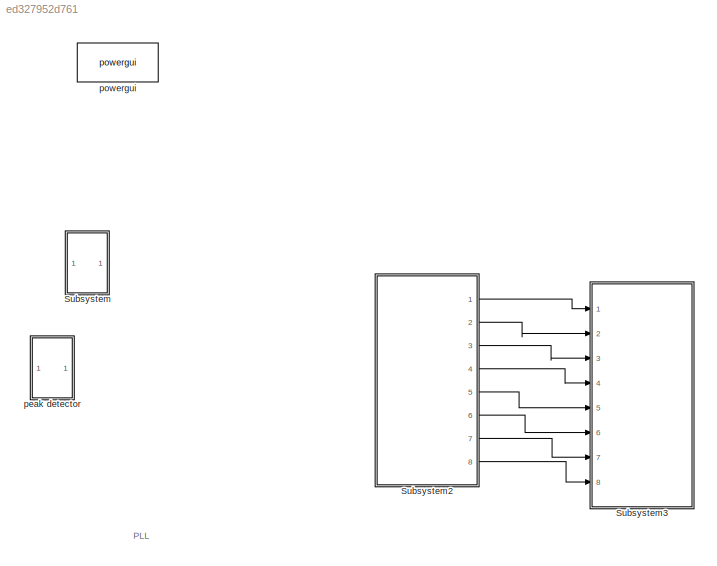
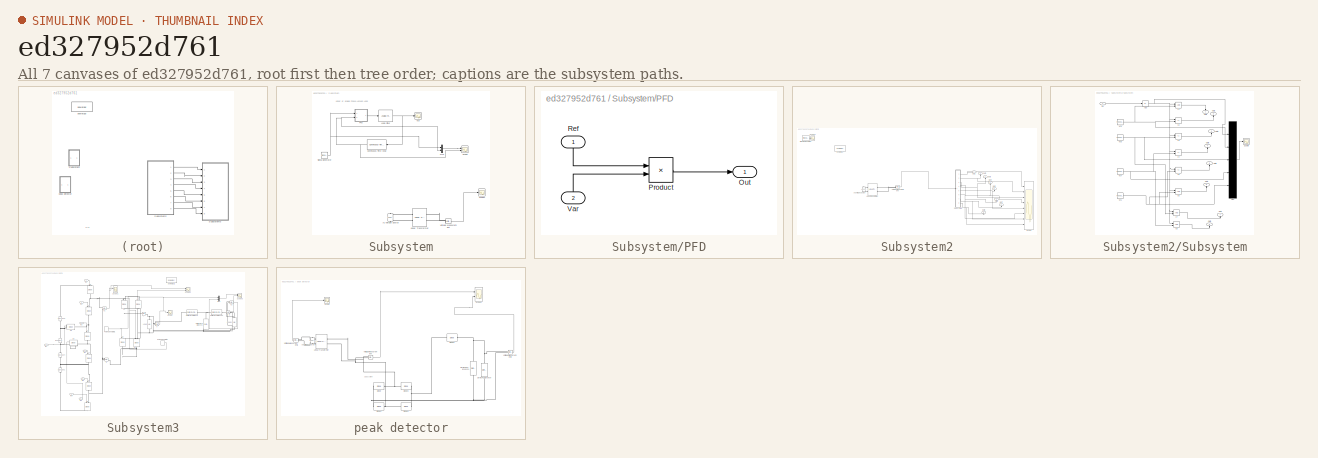
[diagram: thumbnail index - all 7 canvases of the model, root first then tree order]
MODEL slx_ed327952d761
KIND model
CONFIG AbsTol = auto
CONFIG EnableMultiTasking = off
CONFIG FixedStep = auto
CONFIG MaxStep = 1e-4
CONFIG MinStep = auto
CONFIG RelTol = 1e-3
CONFIG SampleTimeConstraint = Unconstrained
CONFIG Solver = VariableStepAuto
CONFIG SolverName = VariableStepAuto
CONFIG StartTime = 0.0
CONFIG StopTime = 0.3
BLOCK [SubSystem] Subsystem
  Ports = []
  RequestExecContextInheritance = off
  Variant = off
BLOCK [Reference] Subsystem/AC Voltage Source  REF=powerlib/Electrical
Sources/AC Voltage Source
  Ports = [0, 0, 0, 0, 0, 1, 1]
  SourceBlock = powerlib/Electrical\nSources/AC Voltage Source
  SourceProductBaseCode = PS
  SourceProductName = Simscape Power Systems
  SourceType = AC Voltage Source
BLOCK [Reference] Subsystem/Continuous-Time VCO2  REF=commsynccomp2/Continuous-Time
VCO
  Ports = [1, 1]
  SourceBlock = commsynccomp2/Continuous-Time\nVCO
  SourceProductBaseCode = CM
  SourceProductName = Communications System Toolbox
  SourceType = Continuous-Time VCO
BLOCK [Reference] Subsystem/Linear Transformer  REF=powerlib/Elements/Linear Transformer
  Ports = [0, 0, 0, 0, 0, 2, 2]
  SourceBlock = powerlib/Elements/Linear Transformer
  SourceProductBaseCode = PS
  SourceProductName = Simscape Power Systems
  SourceType = Linear Transformer
BLOCK [Reference] Subsystem/Loop Filter  REF=dsparch4/Analog
Filter Design
  Ports = [1, 1]
  SourceBlock = dsparch4/Analog\nFilter Design
  SourceProductBaseCode = DS
  SourceProductName = DSP System Toolbox
  SourceType = Analog Filter Design
BLOCK [Mux] Subsystem/Mux
  DisplayOption = bar
  Inputs = 2
  Ports = [2, 1]
BLOCK [SubSystem] Subsystem/PFD
  Ports = [2, 1]
  RequestExecContextInheritance = off
  Variant = off
BLOCK [Outport] Subsystem/PFD/Out
  IconDisplay = Port number
BLOCK [Product] Subsystem/PFD/Product
  InputSameDT = off
  OutDataTypeStr = Inherit: Inherit via internal rule
  Ports = [2, 1]
  SaturateOnIntegerOverflow = off
BLOCK [Inport] Subsystem/PFD/Ref
  IconDisplay = Port number
BLOCK [Inport] Subsystem/PFD/Var
  IconDisplay = Port number
  Port = 2
BLOCK [Scope] Subsystem/Scope
  NumInputPorts = 2
  Ports = [2]
  ScopeSpecificationString = Simulink.scopes.TimeScopeBlockCfg('CurrentConfiguration', extmgr.ConfigurationSet(extmgr.Configuration('Core','General UI',true),extmgr.Configuration('Core','Source UI',true),extmgr.Configuration('Sources','WiredSimulink',true,'DataLoggingVariableName','ScopeData6'),extmgr.Configuration('Visuals','Time Domain',true,'SerializedDisplays',{struct('MinYLimReal','-2.5','MaxYLimReal','2.5','YLabelReal',...<+2151ch>
BLOCK [Scope] Subsystem/Scope1
  NumInputPorts = 1
  Ports = [1]
  ScopeSpecificationString = Simulink.scopes.TimeScopeBlockCfg('CurrentConfiguration', extmgr.ConfigurationSet(extmgr.Configuration('Core','General UI',true),extmgr.Configuration('Core','Source UI',true),extmgr.Configuration('Sources','WiredSimulink',true,'DataLoggingVariableName','ScopeData3'),extmgr.Configuration('Visuals','Time Domain',true,'SerializedDisplays',{struct('MinYLimReal','-8.74963','MaxYLimReal','8.74916','YLab...<+2136ch>
BLOCK [SignalGenerator] Subsystem/Signal Generator
  Amplitude = 2
  Frequency = 2*pi*50
  Ports = [0, 1]
  Units = rad/sec
BLOCK [Scope] Subsystem/Vco
  NumInputPorts = 1
  Ports = [1]
  ScopeSpecificationString = Simulink.scopes.TimeScopeBlockCfg('CurrentConfiguration', extmgr.ConfigurationSet(extmgr.Configuration('Core','General UI',true),extmgr.Configuration('Core','Source UI',true),extmgr.Configuration('Sources','WiredSimulink',true,'DataLoggingSaveFormat','StructureWithTime','DataLoggingDecimation','1','DataLoggingDecimateData',true,'DataLoggingVariableName','ScopeData2'),extmgr.Configuration('Visuals'...<+1677ch>
BLOCK [Reference] Subsystem/Voltage Measurement  REF=powerlib/Measurements/Voltage Measurement
  Ports = [0, 1, 0, 0, 0, 2]
  SourceBlock = powerlib/Measurements/Voltage Measurement
  SourceProductBaseCode = PS
  SourceProductName = Simscape Power Systems
  SourceType = Voltage Measurement
  UserDataPersistent = on
BLOCK [SubSystem] Subsystem2
  Ports = [0, 8]
  RequestExecContextInheritance = off
  Variant = off
BLOCK [Reference] Subsystem2/AC Voltage Source  REF=powerlib/Electrical
Sources/AC Voltage Source
  Ports = [0, 0, 0, 0, 0, 1, 1]
  SourceBlock = powerlib/Electrical\nSources/AC Voltage Source
  SourceProductBaseCode = PS
  SourceProductName = Simscape Power Systems
  SourceType = AC Voltage Source
BLOCK [Reference] Subsystem2/Linear Transformer  REF=powerlib/Elements/Linear Transformer
  Ports = [0, 0, 0, 0, 0, 2, 2]
  SourceBlock = powerlib/Elements/Linear Transformer
  SourceProductBaseCode = PS
  SourceProductName = Simscape Power Systems
  SourceType = Linear Transformer
BLOCK [Outport] Subsystem2/Out1
  IconDisplay = Port number
BLOCK [Outport] Subsystem2/Out2
  IconDisplay = Port number
  Port = 2
BLOCK [Outport] Subsystem2/Out3
  IconDisplay = Port number
  Port = 3
BLOCK [Outport] Subsystem2/Out4
  IconDisplay = Port number
  Port = 4
BLOCK [Outport] Subsystem2/Out5
  IconDisplay = Port number
  Port = 5
BLOCK [Outport] Subsystem2/Out6
  IconDisplay = Port number
  Port = 6
BLOCK [Outport] Subsystem2/Out7
  IconDisplay = Port number
  Port = 7
BLOCK [Outport] Subsystem2/Out8
  IconDisplay = Port number
  Port = 8
BLOCK [Scope] Subsystem2/Scope
  NumInputPorts = 8
  Ports = [8]
  ScopeSpecificationString = Simulink.scopes.TimeScopeBlockCfg('CurrentConfiguration', extmgr.ConfigurationSet(extmgr.Configuration('Core','General UI',true,'FigureColor',[0 0 0]),extmgr.Configuration('Core','Source UI',true),extmgr.Configuration('Sources','WiredSimulink',true,'DataLoggingVariableName','ScopeData2'),extmgr.Configuration('Visuals','Time Domain',true,'PlotType','Line','SerializedDisplays',{struct('MinYLimReal',...<+6373ch>
BLOCK [Scope] Subsystem2/Scope1
  NumInputPorts = 1
  Ports = [1]
  ScopeSpecificationString = Simulink.scopes.TimeScopeBlockCfg('CurrentConfiguration', extmgr.ConfigurationSet(extmgr.Configuration('Core','General UI',true),extmgr.Configuration('Core','Source UI',true),extmgr.Configuration('Sources','WiredSimulink',true,'DataLoggingVariableName','ScopeData2'),extmgr.Configuration('Visuals','Time Domain',true,'SerializedDisplays',{struct('MinYLimReal','-0.62534','MaxYLimReal','5.62802','YLab...<+1477ch>
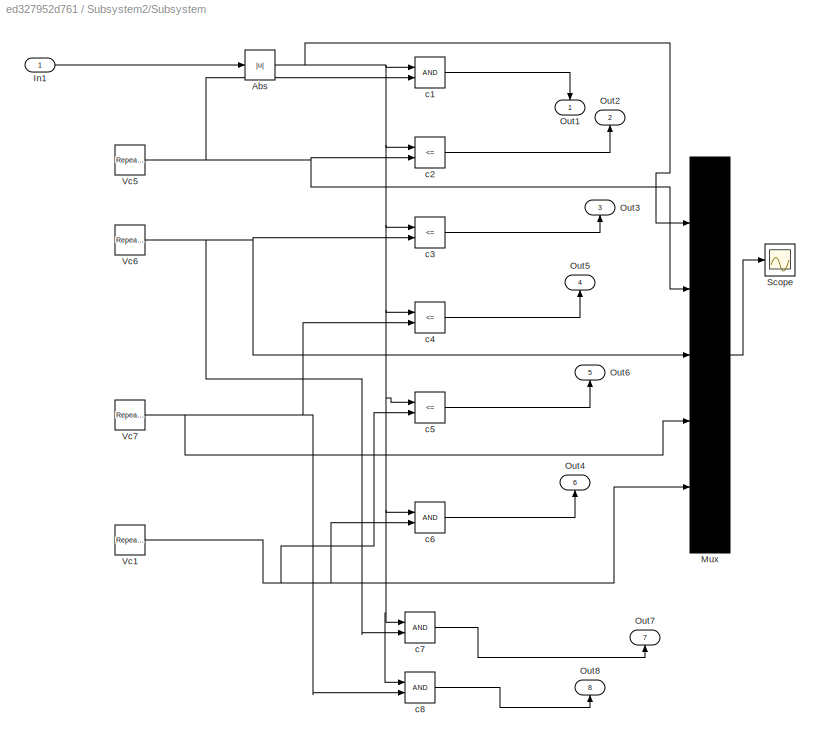
BLOCK [SubSystem] Subsystem2/Subsystem
  Ports = [1, 8]
  RequestExecContextInheritance = off
  Variant = off
BLOCK [Abs] Subsystem2/Subsystem/Abs
  SaturateOnIntegerOverflow = off
BLOCK [Inport] Subsystem2/Subsystem/In1
  IconDisplay = Port number
BLOCK [Mux] Subsystem2/Subsystem/Mux
  DisplayOption = bar
  Inputs = 5
  Ports = [5, 1]
BLOCK [Outport] Subsystem2/Subsystem/Out1
  IconDisplay = Port number
BLOCK [Outport] Subsystem2/Subsystem/Out2
  IconDisplay = Port number
  Port = 2
BLOCK [Outport] Subsystem2/Subsystem/Out3
  IconDisplay = Port number
  Port = 3
BLOCK [Outport] Subsystem2/Subsystem/Out4
  IconDisplay = Port number
  Port = 6
BLOCK [Outport] Subsystem2/Subsystem/Out5
  IconDisplay = Port number
  Port = 4
BLOCK [Outport] Subsystem2/Subsystem/Out6
  IconDisplay = Port number
  Port = 5
BLOCK [Outport] Subsystem2/Subsystem/Out7
  IconDisplay = Port number
  Port = 7
BLOCK [Outport] Subsystem2/Subsystem/Out8
  IconDisplay = Port number
  Port = 8
BLOCK [Scope] Subsystem2/Subsystem/Scope
  NumInputPorts = 1
  Ports = [1]
  ScopeSpecificationString = Simulink.scopes.TimeScopeBlockCfg('CurrentConfiguration', extmgr.ConfigurationSet(extmgr.Configuration('Core','General UI',true),extmgr.Configuration('Core','Source UI',true),extmgr.Configuration('Sources','WiredSimulink',true,'DataLoggingVariableName','ScopeData2'),extmgr.Configuration('Visuals','Time Domain',true,'SerializedDisplays',{struct('MinYLimReal','-0.625','MaxYLimReal','5.625','YLabelRe...<+1668ch>
BLOCK [Reference] Subsystem2/Subsystem/Vc1  REF=simulink/Sources/Repeating
Sequence
  Ports = [0, 1]
  SourceBlock = simulink/Sources/Repeating\nSequence
  SourceProductBaseCode = SL
  SourceProductName = Simulink
  SourceType = Repeating table
BLOCK [Reference] Subsystem2/Subsystem/Vc5  REF=simulink/Sources/Repeating
Sequence
  Ports = [0, 1]
  SourceBlock = simulink/Sources/Repeating\nSequence
  SourceProductBaseCode = SL
  SourceProductName = Simulink
  SourceType = Repeating table
BLOCK [Reference] Subsystem2/Subsystem/Vc6  REF=simulink/Sources/Repeating
Sequence
  Ports = [0, 1]
  SourceBlock = simulink/Sources/Repeating\nSequence
  SourceProductBaseCode = SL
  SourceProductName = Simulink
  SourceType = Repeating table
BLOCK [Reference] Subsystem2/Subsystem/Vc7  REF=simulink/Sources/Repeating
Sequence
  Ports = [0, 1]
  SourceBlock = simulink/Sources/Repeating\nSequence
  SourceProductBaseCode = SL
  SourceProductName = Simulink
  SourceType = Repeating table
BLOCK [RelationalOperator] Subsystem2/Subsystem/c1
  InputSameDT = off
  OutDataTypeStr = boolean
  Ports = [2, 1]
BLOCK [RelationalOperator] Subsystem2/Subsystem/c2
  InputSameDT = off
  Operator = <=
  OutDataTypeStr = boolean
  Ports = [2, 1]
BLOCK [RelationalOperator] Subsystem2/Subsystem/c3
  InputSameDT = off
  Operator = <=
  OutDataTypeStr = boolean
  Ports = [2, 1]
BLOCK [RelationalOperator] Subsystem2/Subsystem/c4
  InputSameDT = off
  Operator = <=
  OutDataTypeStr = boolean
  Ports = [2, 1]
BLOCK [RelationalOperator] Subsystem2/Subsystem/c5
  InputSameDT = off
  Operator = <=
  OutDataTypeStr = boolean
  Ports = [2, 1]
BLOCK [RelationalOperator] Subsystem2/Subsystem/c6
  InputSameDT = off
  OutDataTypeStr = boolean
  Ports = [2, 1]
BLOCK [RelationalOperator] Subsystem2/Subsystem/c7
  InputSameDT = off
  OutDataTypeStr = boolean
  Ports = [2, 1]
BLOCK [RelationalOperator] Subsystem2/Subsystem/c8
  InputSameDT = off
  OutDataTypeStr = boolean
  Ports = [2, 1]
BLOCK [Reference] Subsystem2/Triangle Generator  REF=powerlib_meascontrol/Pulse & Signal
Generators/Triangle
Generator
  Ports = [0, 1]
  SourceBlock = powerlib_meascontrol/Pulse & Signal\nGenerators/Triangle\nGenerator
  SourceProductBaseCode = PS
  SourceProductName = Simscape Power Systems
  SourceType = Triangle Generator
BLOCK [Reference] Subsystem2/Voltage Measurement  REF=powerlib/Measurements/Voltage Measurement
  Ports = [0, 1, 0, 0, 0, 2]
  SourceBlock = powerlib/Measurements/Voltage Measurement
  SourceProductBaseCode = PS
  SourceProductName = Simscape Power Systems
  SourceType = Voltage Measurement
  UserDataPersistent = on
BLOCK [Reference] Subsystem2/powergui  REF=powerlib/powergui
  Ports = []
  Priority = 1
  SourceBlock = powerlib/powergui
  SourceProductBaseCode = PS
  SourceProductName = Simscape Power Systems
  SourceType = PSB option menu block
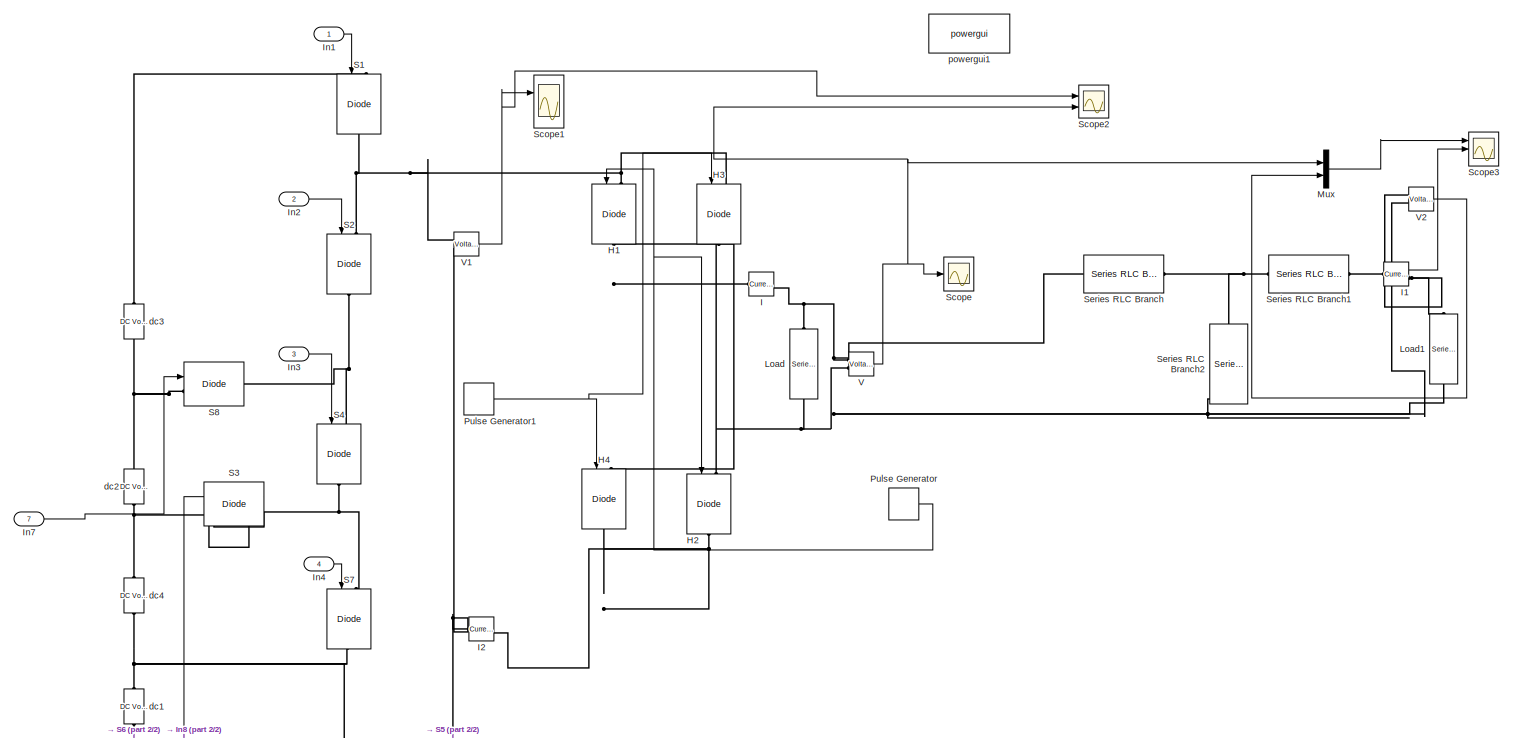
[diagram: Subsystem3 - part 1/2, full width, middle band]
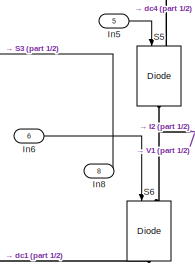
[diagram: Subsystem3 - part 2/2, bottom left region]
BLOCK [SubSystem] Subsystem3
  Ports = [8]
  RequestExecContextInheritance = off
  Variant = off
BLOCK [Reference] Subsystem3/H1  REF=powerlib/Power
Electronics/IGBT//Diode
  Ports = [1, 0, 0, 0, 0, 1, 1]
  SourceBlock = powerlib/Power\nElectronics/IGBT//Diode
  SourceProductBaseCode = PS
  SourceProductName = Simscape Power Systems
  SourceType = IGBT/Diode
BLOCK [Reference] Subsystem3/H2  REF=powerlib/Power
Electronics/IGBT//Diode
  Ports = [1, 0, 0, 0, 0, 1, 1]
  SourceBlock = powerlib/Power\nElectronics/IGBT//Diode
  SourceProductBaseCode = PS
  SourceProductName = Simscape Power Systems
  SourceType = IGBT/Diode
BLOCK [Reference] Subsystem3/H3  REF=powerlib/Power
Electronics/IGBT//Diode
  Ports = [1, 0, 0, 0, 0, 1, 1]
  SourceBlock = powerlib/Power\nElectronics/IGBT//Diode
  SourceProductBaseCode = PS
  SourceProductName = Simscape Power Systems
  SourceType = IGBT/Diode
BLOCK [Reference] Subsystem3/H4  REF=powerlib/Power
Electronics/IGBT//Diode
  Ports = [1, 0, 0, 0, 0, 1, 1]
  SourceBlock = powerlib/Power\nElectronics/IGBT//Diode
  SourceProductBaseCode = PS
  SourceProductName = Simscape Power Systems
  SourceType = IGBT/Diode
BLOCK [Reference] Subsystem3/I  REF=powerlib/Measurements/Current Measurement
  Ports = [0, 1, 0, 0, 0, 1, 1]
  SourceBlock = powerlib/Measurements/Current Measurement
  SourceProductBaseCode = PS
  SourceProductName = Simscape Power Systems
  SourceType = Current Measurement
BLOCK [Reference] Subsystem3/I1  REF=powerlib/Measurements/Current Measurement
  Ports = [0, 1, 0, 0, 0, 1, 1]
  SourceBlock = powerlib/Measurements/Current Measurement
  SourceProductBaseCode = PS
  SourceProductName = Simscape Power Systems
  SourceType = Current Measurement
BLOCK [Reference] Subsystem3/I2  REF=powerlib/Measurements/Current Measurement
  Ports = [0, 1, 0, 0, 0, 1, 1]
  SourceBlock = powerlib/Measurements/Current Measurement
  SourceProductBaseCode = PS
  SourceProductName = Simscape Power Systems
  SourceType = Current Measurement
BLOCK [Inport] Subsystem3/In1
  IconDisplay = Port number
BLOCK [Inport] Subsystem3/In2
  IconDisplay = Port number
  Port = 2
BLOCK [Inport] Subsystem3/In3
  IconDisplay = Port number
  Port = 3
BLOCK [Inport] Subsystem3/In4
  IconDisplay = Port number
  Port = 4
BLOCK [Inport] Subsystem3/In5
  IconDisplay = Port number
  Port = 5
BLOCK [Inport] Subsystem3/In6
  IconDisplay = Port number
  Port = 6
BLOCK [Inport] Subsystem3/In7
  IconDisplay = Port number
  Port = 7
BLOCK [Inport] Subsystem3/In8
  IconDisplay = Port number
  Port = 8
BLOCK [Reference] Subsystem3/Load  REF=powerlib/Elements/Series RLC Branch
  Ports = [0, 0, 0, 0, 0, 1, 1]
  SourceBlock = powerlib/Elements/Series RLC Branch
  SourceProductBaseCode = PS
  SourceProductName = Simscape Power Systems
  SourceType = Series RLC Branch
BLOCK [Reference] Subsystem3/Load1  REF=powerlib/Elements/Series RLC Branch
  Ports = [0, 0, 0, 0, 0, 1, 1]
  SourceBlock = powerlib/Elements/Series RLC Branch
  SourceProductBaseCode = PS
  SourceProductName = Simscape Power Systems
  SourceType = Series RLC Branch
BLOCK [Mux] Subsystem3/Mux
  DisplayOption = bar
  Inputs = 2
  Ports = [2, 1]
BLOCK [DiscretePulseGenerator] Subsystem3/Pulse Generator
  Period = 0.02
  Ports = [0, 1]
  PulseType = Time based
  PulseWidth = 50
BLOCK [DiscretePulseGenerator] Subsystem3/Pulse Generator1
  Period = 0.02
  PhaseDelay = .01
  Ports = [0, 1]
  PulseType = Time based
  PulseWidth = 50
BLOCK [Reference] Subsystem3/S1  REF=powerlib/Power
Electronics/IGBT//Diode
  Ports = [1, 0, 0, 0, 0, 1, 1]
  SourceBlock = powerlib/Power\nElectronics/IGBT//Diode
  SourceProductBaseCode = PS
  SourceProductName = Simscape Power Systems
  SourceType = IGBT/Diode
BLOCK [Reference] Subsystem3/S2  REF=powerlib/Power
Electronics/IGBT//Diode
  Ports = [1, 0, 0, 0, 0, 1, 1]
  SourceBlock = powerlib/Power\nElectronics/IGBT//Diode
  SourceProductBaseCode = PS
  SourceProductName = Simscape Power Systems
  SourceType = IGBT/Diode
BLOCK [Reference] Subsystem3/S3  REF=powerlib/Power
Electronics/IGBT//Diode
  Ports = [1, 0, 0, 0, 0, 1, 1]
  SourceBlock = powerlib/Power\nElectronics/IGBT//Diode
  SourceProductBaseCode = PS
  SourceProductName = Simscape Power Systems
  SourceType = IGBT/Diode
BLOCK [Reference] Subsystem3/S4  REF=powerlib/Power
Electronics/IGBT//Diode
  Ports = [1, 0, 0, 0, 0, 1, 1]
  SourceBlock = powerlib/Power\nElectronics/IGBT//Diode
  SourceProductBaseCode = PS
  SourceProductName = Simscape Power Systems
  SourceType = IGBT/Diode
BLOCK [Reference] Subsystem3/S5  REF=powerlib/Power
Electronics/IGBT//Diode
  Ports = [1, 0, 0, 0, 0, 1, 1]
  SourceBlock = powerlib/Power\nElectronics/IGBT//Diode
  SourceProductBaseCode = PS
  SourceProductName = Simscape Power Systems
  SourceType = IGBT/Diode
BLOCK [Reference] Subsystem3/S6  REF=powerlib/Power
Electronics/IGBT//Diode
  Ports = [1, 0, 0, 0, 0, 1, 1]
  SourceBlock = powerlib/Power\nElectronics/IGBT//Diode
  SourceProductBaseCode = PS
  SourceProductName = Simscape Power Systems
  SourceType = IGBT/Diode
BLOCK [Reference] Subsystem3/S7  REF=powerlib/Power
Electronics/IGBT//Diode
  Ports = [1, 0, 0, 0, 0, 1, 1]
  SourceBlock = powerlib/Power\nElectronics/IGBT//Diode
  SourceProductBaseCode = PS
  SourceProductName = Simscape Power Systems
  SourceType = IGBT/Diode
BLOCK [Reference] Subsystem3/S8  REF=powerlib/Power
Electronics/IGBT//Diode
  Ports = [1, 0, 0, 0, 0, 1, 1]
  SourceBlock = powerlib/Power\nElectronics/IGBT//Diode
  SourceProductBaseCode = PS
  SourceProductName = Simscape Power Systems
  SourceType = IGBT/Diode
BLOCK [Scope] Subsystem3/Scope
  NumInputPorts = 1
  Ports = [1]
  ScopeSpecificationString = Simulink.scopes.TimeScopeBlockCfg('CurrentConfiguration', extmgr.ConfigurationSet(extmgr.Configuration('Core','General UI',true,'FigureColor',[1 1 1]),extmgr.Configuration('Core','Source UI',true),extmgr.Configuration('Sources','WiredSimulink',true,'DataLogging',true,'DataLoggingSaveFormat','StructureWithTime','DataLoggingMaxPoints','50000','DataLoggingDecimation','1','DataLoggingDecimateData',tru...<+1896ch>
BLOCK [Scope] Subsystem3/Scope1
  NumInputPorts = 2
  Ports = [2]
  ScopeSpecificationString = Simulink.scopes.TimeScopeBlockCfg('CurrentConfiguration', extmgr.ConfigurationSet(extmgr.Configuration('Core','General UI',true),extmgr.Configuration('Core','Source UI',true),extmgr.Configuration('Sources','WiredSimulink',true,'DataLoggingVariableName','ScopeData1'),extmgr.Configuration('Visuals','Time Domain',true,'PlotType','Line','SerializedDisplays',{struct('MinYLimReal','-7.4985','MaxYLimReal...<+1657ch>
BLOCK [Scope] Subsystem3/Scope2
  NumInputPorts = 2
  Ports = [2]
  ScopeSpecificationString = Simulink.scopes.TimeScopeBlockCfg('CurrentConfiguration', extmgr.ConfigurationSet(extmgr.Configuration('Core','General UI',true,'FigureColor',[1 1 1]),extmgr.Configuration('Core','Source UI',true),extmgr.Configuration('Sources','WiredSimulink',true,'DataLoggingVariableName','ScopeData1'),extmgr.Configuration('Visuals','Time Domain',true,'SerializedDisplays',{struct('MinYLimReal','-9.99659','MaxYLi...<+2318ch>
BLOCK [Scope] Subsystem3/Scope3
  NumInputPorts = 3
  Ports = [3]
  ScopeSpecificationString = Simulink.scopes.TimeScopeBlockCfg('CurrentConfiguration', extmgr.ConfigurationSet(extmgr.Configuration('Core','General UI',true,'FigureColor',[1 0.843137254901961 0]),extmgr.Configuration('Core','Source UI',true),extmgr.Configuration('Sources','WiredSimulink',true,'DataLoggingVariableName','ScopeData4'),extmgr.Configuration('Visuals','Time Domain',true,'PlotType','Line','SerializedDisplays',{struc...<+2410ch>
BLOCK [Reference] Subsystem3/Series RLC Branch  REF=powerlib/Elements/Series RLC Branch
  Ports = [0, 0, 0, 0, 0, 1, 1]
  SourceBlock = powerlib/Elements/Series RLC Branch
  SourceProductBaseCode = PS
  SourceProductName = Simscape Power Systems
  SourceType = Series RLC Branch
BLOCK [Reference] Subsystem3/Series RLC Branch1  REF=powerlib/Elements/Series RLC Branch
  Ports = [0, 0, 0, 0, 0, 1, 1]
  SourceBlock = powerlib/Elements/Series RLC Branch
  SourceProductBaseCode = PS
  SourceProductName = Simscape Power Systems
  SourceType = Series RLC Branch
BLOCK [Reference] Subsystem3/Series RLC Branch2  REF=powerlib/Elements/Series RLC Branch
  Ports = [0, 0, 0, 0, 0, 1, 1]
  SourceBlock = powerlib/Elements/Series RLC Branch
  SourceProductBaseCode = PS
  SourceProductName = Simscape Power Systems
  SourceType = Series RLC Branch
BLOCK [Reference] Subsystem3/V  REF=powerlib/Measurements/Voltage Measurement
  Ports = [0, 1, 0, 0, 0, 2]
  SourceBlock = powerlib/Measurements/Voltage Measurement
  SourceProductBaseCode = PS
  SourceProductName = Simscape Power Systems
  SourceType = Voltage Measurement
BLOCK [Reference] Subsystem3/V1  REF=powerlib/Measurements/Voltage Measurement
  Ports = [0, 1, 0, 0, 0, 2]
  SourceBlock = powerlib/Measurements/Voltage Measurement
  SourceProductBaseCode = PS
  SourceProductName = Simscape Power Systems
  SourceType = Voltage Measurement
BLOCK [Reference] Subsystem3/V2  REF=powerlib/Measurements/Voltage Measurement
  Ports = [0, 1, 0, 0, 0, 2]
  SourceBlock = powerlib/Measurements/Voltage Measurement
  SourceProductBaseCode = PS
  SourceProductName = Simscape Power Systems
  SourceType = Voltage Measurement
BLOCK [Reference] Subsystem3/dc1  REF=powerlib/Electrical
Sources/DC Voltage Source
  Ports = [0, 0, 0, 0, 0, 1, 1]
  SourceBlock = powerlib/Electrical\nSources/DC Voltage Source
  SourceProductBaseCode = PS
  SourceProductName = Simscape Power Systems
  SourceType = DC Voltage Source
BLOCK [Reference] Subsystem3/dc2  REF=powerlib/Electrical
Sources/DC Voltage Source
  Ports = [0, 0, 0, 0, 0, 1, 1]
  SourceBlock = powerlib/Electrical\nSources/DC Voltage Source
  SourceProductBaseCode = PS
  SourceProductName = Simscape Power Systems
  SourceType = DC Voltage Source
BLOCK [Reference] Subsystem3/dc3  REF=powerlib/Electrical
Sources/DC Voltage Source
  Ports = [0, 0, 0, 0, 0, 1, 1]
  SourceBlock = powerlib/Electrical\nSources/DC Voltage Source
  SourceProductBaseCode = PS
  SourceProductName = Simscape Power Systems
  SourceType = DC Voltage Source
BLOCK [Reference] Subsystem3/dc4  REF=powerlib/Electrical
Sources/DC Voltage Source
  Ports = [0, 0, 0, 0, 0, 1, 1]
  SourceBlock = powerlib/Electrical\nSources/DC Voltage Source
  SourceProductBaseCode = PS
  SourceProductName = Simscape Power Systems
  SourceType = DC Voltage Source
BLOCK [Reference] Subsystem3/powergui1  REF=powerlib/powergui
  Ports = []
  Priority = 1
  SourceBlock = powerlib/powergui
  SourceProductBaseCode = PS
  SourceProductName = Simscape Power Systems
  SourceType = PSB option menu block
BLOCK [SubSystem] peak detector
  Ports = []
  RequestExecContextInheritance = off
  Variant = off
BLOCK [Reference] peak detector/AC Voltage Source  REF=powerlib/Electrical
Sources/AC Voltage Source
  Ports = [0, 0, 0, 0, 0, 1, 1]
  SourceBlock = powerlib/Electrical\nSources/AC Voltage Source
  SourceProductBaseCode = PS
  SourceProductName = Simscape Power Systems
  SourceType = AC Voltage Source
BLOCK [Reference] peak detector/Diode  REF=powerlib/Power
Electronics/Diode
  Ports = [0, 0, 0, 0, 0, 1, 1]
  SourceBlock = powerlib/Power\nElectronics/Diode
  SourceProductBaseCode = PS
  SourceProductName = Simscape Power Systems
  SourceType = Diode
BLOCK [Reference] peak detector/Diode1  REF=powerlib/Power
Electronics/Diode
  Ports = [0, 0, 0, 0, 0, 1, 1]
  SourceBlock = powerlib/Power\nElectronics/Diode
  SourceProductBaseCode = PS
  SourceProductName = Simscape Power Systems
  SourceType = Diode
BLOCK [Reference] peak detector/Diode2  REF=powerlib/Power
Electronics/Diode
  Ports = [0, 0, 0, 0, 0, 1, 1]
  SourceBlock = powerlib/Power\nElectronics/Diode
  SourceProductBaseCode = PS
  SourceProductName = Simscape Power Systems
  SourceType = Diode
BLOCK [Reference] peak detector/Diode3  REF=powerlib/Power
Electronics/Diode
  Ports = [0, 0, 0, 0, 0, 1, 1]
  SourceBlock = powerlib/Power\nElectronics/Diode
  SourceProductBaseCode = PS
  SourceProductName = Simscape Power Systems
  SourceType = Diode
BLOCK [Reference] peak detector/Diode4  REF=powerlib/Power
Electronics/Diode
  Ports = [0, 0, 0, 0, 0, 1, 1]
  SourceBlock = powerlib/Power\nElectronics/Diode
  SourceProductBaseCode = PS
  SourceProductName = Simscape Power Systems
  SourceType = Diode
BLOCK [Reference] peak detector/Linear Transformer  REF=powerlib/Elements/Linear Transformer
  Ports = [0, 0, 0, 0, 0, 2, 2]
  SourceBlock = powerlib/Elements/Linear Transformer
  SourceProductBaseCode = PS
  SourceProductName = Simscape Power Systems
  SourceType = Linear Transformer
BLOCK [Scope] peak detector/Scope
  NumInputPorts = 1
  Ports = [1]
  ScopeSpecificationString = Simulink.scopes.TimeScopeBlockCfg('CurrentConfiguration', extmgr.ConfigurationSet(extmgr.Configuration('Core','General UI',true),extmgr.Configuration('Core','Source UI',true),extmgr.Configuration('Sources','WiredSimulink',true),extmgr.Configuration('Visuals','Time Domain',true,'SerializedDisplays',{struct('MinYLimReal','-1.00000','MaxYLimReal','1.00000','YLabelReal','','MinYLimMag','0.00000','MaxY...<+2078ch>
BLOCK [Scope] peak detector/Scope1
  NumInputPorts = 2
  Ports = [2]
  ScopeSpecificationString = Simulink.scopes.TimeScopeBlockCfg('CurrentConfiguration', extmgr.ConfigurationSet(extmgr.Configuration('Core','General UI',true),extmgr.Configuration('Core','Source UI',true),extmgr.Configuration('Sources','WiredSimulink',true,'DataLoggingVariableName','ScopeData1'),extmgr.Configuration('Visuals','Time Domain',true,'SerializedDisplays',{struct('MinYLimReal','-6.25333','MaxYLimReal','6.25335','YLab...<+2183ch>
BLOCK [Reference] peak detector/Series RLC Branch  REF=powerlib/Elements/Series RLC Branch
  Ports = [0, 0, 0, 0, 0, 1, 1]
  SourceBlock = powerlib/Elements/Series RLC Branch
  SourceProductBaseCode = PS
  SourceProductName = Simscape Power Systems
  SourceType = Series RLC Branch
BLOCK [Reference] peak detector/Series RLC Branch1  REF=powerlib/Elements/Series RLC Branch
  Ports = [0, 0, 0, 0, 0, 1, 1]
  SourceBlock = powerlib/Elements/Series RLC Branch
  SourceProductBaseCode = PS
  SourceProductName = Simscape Power Systems
  SourceType = Series RLC Branch
BLOCK [Reference] peak detector/Voltage Measurement  REF=powerlib/Measurements/Voltage Measurement
  Ports = [0, 1, 0, 0, 0, 2]
  SourceBlock = powerlib/Measurements/Voltage Measurement
  SourceProductBaseCode = PS
  SourceProductName = Simscape Power Systems
  SourceType = Voltage Measurement
  UserDataPersistent = on
BLOCK [Reference] peak detector/Voltage Measurement1  REF=powerlib/Measurements/Voltage Measurement
  Ports = [0, 1, 0, 0, 0, 2]
  SourceBlock = powerlib/Measurements/Voltage Measurement
  SourceProductBaseCode = PS
  SourceProductName = Simscape Power Systems
  SourceType = Voltage Measurement
  UserDataPersistent = on
BLOCK [Reference] peak detector/Voltage Measurement2  REF=powerlib/Measurements/Voltage Measurement
  Ports = [0, 1, 0, 0, 0, 2]
  SourceBlock = powerlib/Measurements/Voltage Measurement
  SourceProductBaseCode = PS
  SourceProductName = Simscape Power Systems
  SourceType = Voltage Measurement
  UserDataPersistent = on
BLOCK [Reference] powergui  REF=powerlib/powergui
  Ports = []
  Priority = 1
  SourceBlock = powerlib/powergui
  SourceProductBaseCode = PS
  SourceProductName = Simscape Power Systems
  SourceType = PSB option menu block
ANNOTATION (root): PLL
ANNOTATION Subsystem: Linear or analog Phase-Locked Loop
ANNOTATION peak detector: Subsystem
NET Subsystem/Continuous-Time VCO2:1 -> Subsystem/Mux:2, Subsystem/PFD:2, Subsystem/Scope:2
NET Subsystem/Loop Filter:1 -> Subsystem/Continuous-Time VCO2:1, Subsystem/Vco:1
LINE Subsystem/Mux:1 -> Subsystem/Scope:1
LINE Subsystem/PFD/Product:1 -> Subsystem/PFD/Out:1
LINE Subsystem/PFD/Ref:1 -> Subsystem/PFD/Product:1
LINE Subsystem/PFD/Var:1 -> Subsystem/PFD/Product:2
LINE Subsystem/PFD:1 -> Subsystem/Loop Filter:1
NET Subsystem/Signal Generator:1 -> Subsystem/Mux:1, Subsystem/PFD:1
LINE Subsystem/Voltage Measurement:1 -> Subsystem/Scope1:1
NET Subsystem2/Subsystem/Abs:1 -> Subsystem2/Subsystem/Mux:1, Subsystem2/Subsystem/c1:1, Subsystem2/Subsystem/c2:1, Subsystem2/Subsystem/c3:1, Subsystem2/Subsystem/c4:1, Subsystem2/Subsystem/c5:1, Subsystem2/Subsystem/c6:1, Subsystem2/Subsystem/c7:1, Subsystem2/Subsystem/c8:1
LINE Subsystem2/Subsystem/In1:1 -> Subsystem2/Subsystem/Abs:1
LINE Subsystem2/Subsystem/Mux:1 -> Subsystem2/Subsystem/Scope:1
NET Subsystem2/Subsystem/Vc1:1 -> Subsystem2/Subsystem/Mux:5, Subsystem2/Subsystem/c5:2, Subsystem2/Subsystem/c6:2
NET Subsystem2/Subsystem/Vc5:1 -> Subsystem2/Subsystem/Mux:2, Subsystem2/Subsystem/c1:2, Subsystem2/Subsystem/c2:2
NET Subsystem2/Subsystem/Vc6:1 -> Subsystem2/Subsystem/Mux:3, Subsystem2/Subsystem/c3:2, Subsystem2/Subsystem/c7:2
NET Subsystem2/Subsystem/Vc7:1 -> Subsystem2/Subsystem/Mux:4, Subsystem2/Subsystem/c4:2, Subsystem2/Subsystem/c8:2
LINE Subsystem2/Subsystem/c1:1 -> Subsystem2/Subsystem/Out1:1
LINE Subsystem2/Subsystem/c2:1 -> Subsystem2/Subsystem/Out2:1
LINE Subsystem2/Subsystem/c3:1 -> Subsystem2/Subsystem/Out3:1
LINE Subsystem2/Subsystem/c4:1 -> Subsystem2/Subsystem/Out5:1
LINE Subsystem2/Subsystem/c5:1 -> Subsystem2/Subsystem/Out6:1
LINE Subsystem2/Subsystem/c6:1 -> Subsystem2/Subsystem/Out4:1
LINE Subsystem2/Subsystem/c7:1 -> Subsystem2/Subsystem/Out7:1
LINE Subsystem2/Subsystem/c8:1 -> Subsystem2/Subsystem/Out8:1
NET Subsystem2/Subsystem:1 -> Subsystem2/Out1:1, Subsystem2/Scope:1
NET Subsystem2/Subsystem:2 -> Subsystem2/Out2:1, Subsystem2/Scope:2
NET Subsystem2/Subsystem:3 -> Subsystem2/Out3:1, Subsystem2/Scope:3
NET Subsystem2/Subsystem:4 -> Subsystem2/Out4:1, Subsystem2/Scope:4
NET Subsystem2/Subsystem:5 -> Subsystem2/Out5:1, Subsystem2/Scope:5
NET Subsystem2/Subsystem:6 -> Subsystem2/Out6:1, Subsystem2/Scope:6
NET Subsystem2/Subsystem:7 -> Subsystem2/Out7:1, Subsystem2/Scope:7
NET Subsystem2/Subsystem:8 -> Subsystem2/Out8:1, Subsystem2/Scope:8
LINE Subsystem2/Triangle Generator:1 -> Subsystem2/Scope1:1
LINE Subsystem2/Voltage Measurement:1 -> Subsystem2/Subsystem:1
LINE Subsystem2:1 -> Subsystem3:1
LINE Subsystem2:2 -> Subsystem3:2
LINE Subsystem2:3 -> Subsystem3:3
LINE Subsystem2:4 -> Subsystem3:4
LINE Subsystem2:5 -> Subsystem3:5
LINE Subsystem2:6 -> Subsystem3:6
LINE Subsystem2:7 -> Subsystem3:7
LINE Subsystem2:8 -> Subsystem3:8
LINE Subsystem3/I1:1 -> Subsystem3/Scope3:2
LINE Subsystem3/In1:1 -> Subsystem3/S1:1
LINE Subsystem3/In2:1 -> Subsystem3/S2:1
LINE Subsystem3/In3:1 -> Subsystem3/S4:1
LINE Subsystem3/In4:1 -> Subsystem3/S7:1
LINE Subsystem3/In5:1 -> Subsystem3/S5:1
LINE Subsystem3/In6:1 -> Subsystem3/S6:1
LINE Subsystem3/In7:1 -> Subsystem3/S8:1
LINE Subsystem3/In8:1 -> Subsystem3/S3:1
LINE Subsystem3/Mux:1 -> Subsystem3/Scope3:1
NET Subsystem3/Pulse Generator1:1 -> Subsystem3/H3:1, Subsystem3/H4:1
NET Subsystem3/Pulse Generator:1 -> Subsystem3/H1:1, Subsystem3/H2:1
NET Subsystem3/V1:1 -> Subsystem3/Scope1:1, Subsystem3/Scope2:1
LINE Subsystem3/V2:1 -> Subsystem3/Mux:2
NET Subsystem3/V:1 -> Subsystem3/Mux:1, Subsystem3/Scope2:2, Subsystem3/Scope:1
LINE peak detector/Voltage Measurement1:1 -> peak detector/Scope:1
LINE peak detector/Voltage Measurement2:1 -> peak detector/Scope1:2
LINE peak detector/Voltage Measurement:1 -> peak detector/Scope1:1
PLINE Subsystem/AC Voltage Source:LConn1 -- Subsystem/Linear Transformer:LConn2
PLINE Subsystem/AC Voltage Source:RConn1 -- Subsystem/Linear Transformer:LConn1
PLINE Subsystem/Linear Transformer:RConn1 -- Subsystem/Voltage Measurement:LConn1
PLINE Subsystem/Linear Transformer:RConn2 -- Subsystem/Voltage Measurement:LConn2
PLINE Subsystem2/AC Voltage Source:LConn1 -- Subsystem2/Linear Transformer:LConn2
PLINE Subsystem2/AC Voltage Source:RConn1 -- Subsystem2/Linear Transformer:LConn1
PLINE Subsystem2/Linear Transformer:RConn1 -- Subsystem2/Voltage Measurement:LConn1
PLINE Subsystem2/Linear Transformer:RConn2 -- Subsystem2/Voltage Measurement:LConn2
PNET net1: Subsystem3/H1:LConn1 -- Subsystem3/H3:LConn1 -- Subsystem3/S1:RConn1 -- Subsystem3/S2:LConn1 -- Subsystem3/V1:LConn1
PNET net2: Subsystem3/H1:RConn1 -- Subsystem3/H4:LConn1 -- Subsystem3/I:LConn1
PNET net3: Subsystem3/H2:LConn1 -- Subsystem3/H3:RConn1 -- Subsystem3/Load1:RConn1 -- Subsystem3/Load:RConn1 -- Subsystem3/Series RLC Branch2:RConn1 -- Subsystem3/V2:LConn2 -- Subsystem3/V:LConn2
PNET net4: Subsystem3/H2:RConn1 -- Subsystem3/H4:RConn1 -- Subsystem3/I2:RConn1
PLINE Subsystem3/I1:LConn1 -- Subsystem3/Series RLC Branch1:RConn1
PNET net5: Subsystem3/I1:RConn1 -- Subsystem3/Load1:LConn1 -- Subsystem3/V2:LConn1
PNET net6: Subsystem3/I2:LConn1 -- Subsystem3/S5:RConn1 -- Subsystem3/S6:LConn1 -- Subsystem3/V1:LConn2
PNET net7: Subsystem3/I:RConn1 -- Subsystem3/Load:LConn1 -- Subsystem3/Series RLC Branch:LConn1 -- Subsystem3/V:LConn1
PLINE Subsystem3/S1:LConn1 -- Subsystem3/dc3:RConn1
PNET net8: Subsystem3/S2:RConn1 -- Subsystem3/S4:LConn1 -- Subsystem3/S8:RConn1
PNET net9: Subsystem3/S3:LConn1 -- Subsystem3/dc2:LConn1 -- Subsystem3/dc4:RConn1
PNET net10: Subsystem3/S3:RConn1 -- Subsystem3/S4:RConn1 -- Subsystem3/S7:LConn1
PNET net11: Subsystem3/S5:LConn1 -- Subsystem3/S7:RConn1 -- Subsystem3/dc1:RConn1 -- Subsystem3/dc4:LConn1
PLINE Subsystem3/S6:RConn1 -- Subsystem3/dc1:LConn1
PNET net12: Subsystem3/S8:LConn1 -- Subsystem3/dc2:RConn1 -- Subsystem3/dc3:LConn1
PNET net13: Subsystem3/Series RLC Branch1:LConn1 -- Subsystem3/Series RLC Branch2:LConn1 -- Subsystem3/Series RLC Branch:RConn1
PNET net14: peak detector/AC Voltage Source:LConn1 -- peak detector/Linear Transformer:LConn2 -- peak detector/Voltage Measurement1:LConn2
PNET net15: peak detector/AC Voltage Source:RConn1 -- peak detector/Linear Transformer:LConn1 -- peak detector/Voltage Measurement1:LConn1
PNET net16: peak detector/Diode1:LConn1 -- peak detector/Diode:LConn1 -- peak detector/Series RLC Branch1:RConn1 -- peak detector/Series RLC Branch:LConn1 -- peak detector/Voltage Measurement2:LConn2
PNET net17: peak detector/Diode1:RConn1 -- peak detector/Diode4:LConn1 -- peak detector/Linear Transformer:RConn2 -- peak detector/Voltage Measurement:LConn2
PNET net18: peak detector/Diode2:LConn1 -- peak detector/Diode3:RConn1 -- peak detector/Diode4:RConn1
PNET net19: peak detector/Diode2:RConn1 -- peak detector/Series RLC Branch1:LConn1 -- peak detector/Series RLC Branch:RConn1 -- peak detector/Voltage Measurement2:LConn1
PNET net20: peak detector/Diode3:LConn1 -- peak detector/Diode:RConn1 -- peak detector/Linear Transformer:RConn1 -- peak detector/Voltage Measurement:LConn1
note: NET lines group one-source signal fan-out (src -> all destinations, sorted); 1:1 wires keep LINE; PNET lines group multi-terminal physical nets as a canonical sorted terminal list (undirected conserving connections); 2-terminal nets keep the pairwise PLINE form
